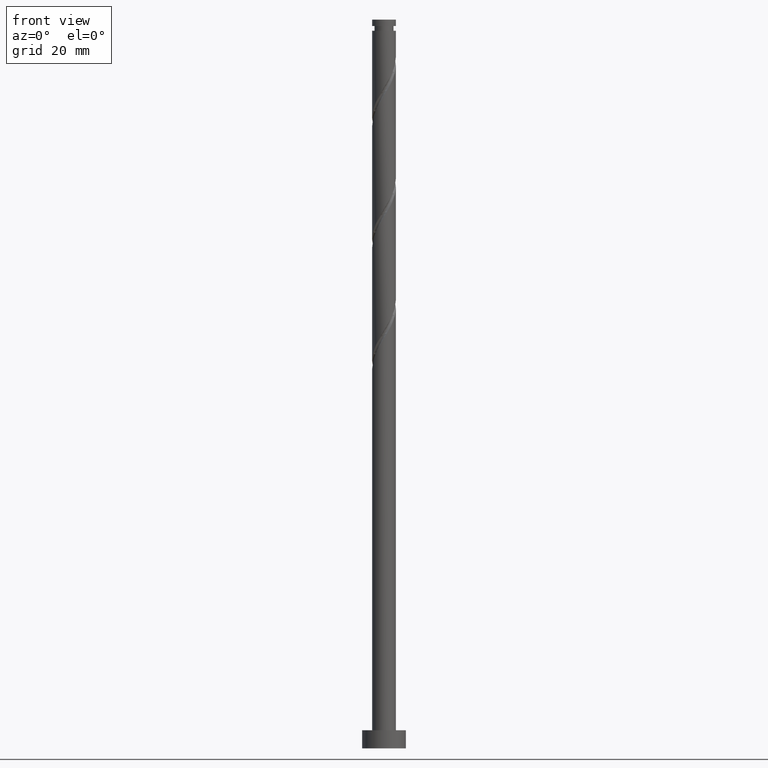
[diagram: clean part render]
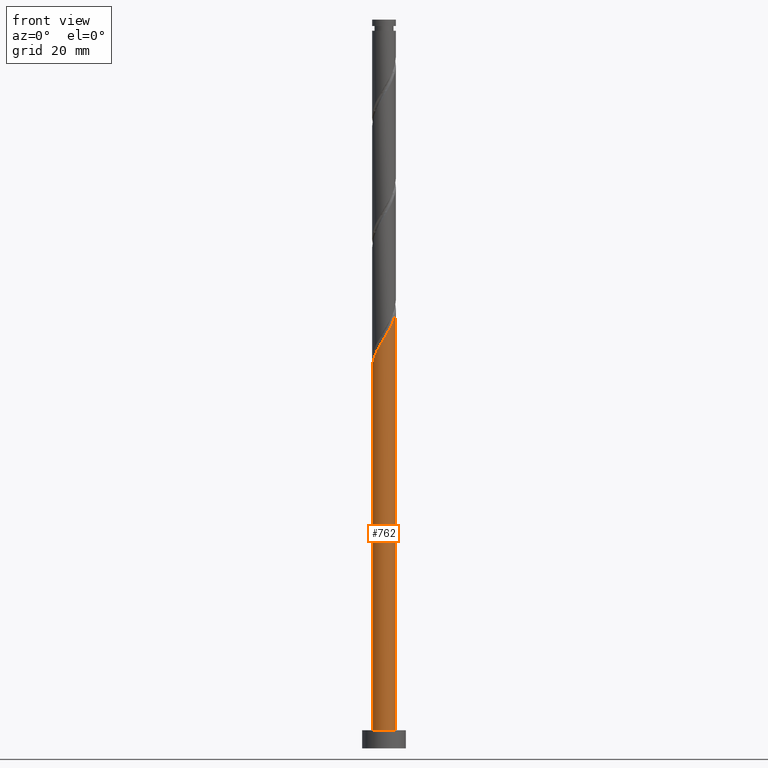
[diagram: same view with one face highlighted and labeled with its STEP entity id]
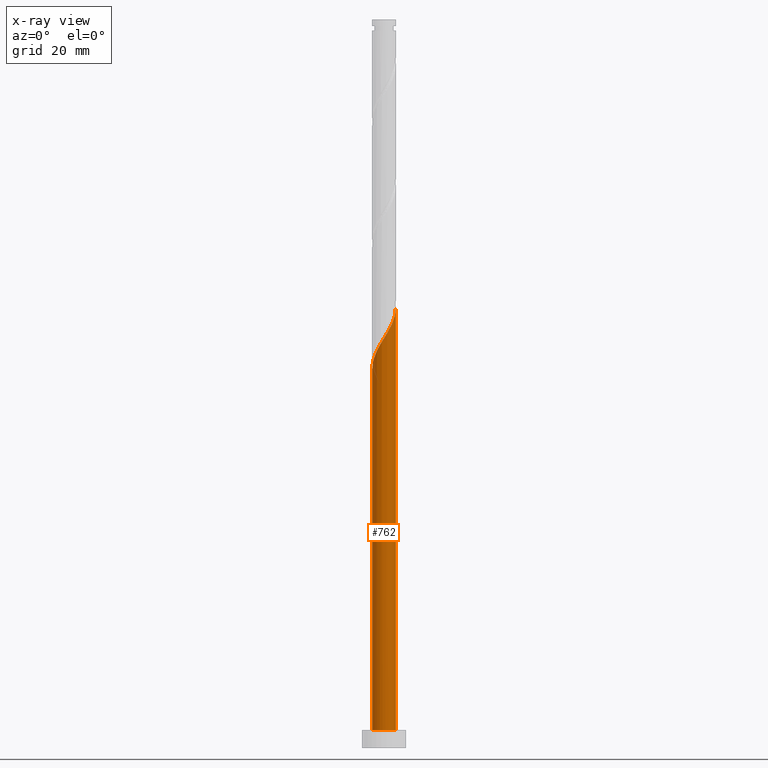
[diagram: x-ray of the same camera — body ghosted, the highlighted face saturated]
A machine part, front view. The second image highlights one B-rep face of the part: STEP entity #762.
The next image is the same camera in x-ray: the body ghosted, the highlighted face saturated — about 0% of this face is hidden behind the body in this view.
In plain terms, the highlighted cylindrical surface (edge-blend (fillet) strip) has radius 3.25 mm, axis along (-0, -0, -1).
Its self-contained STEP definition (entity closure, byte-faithful):
#37 = CARTESIAN_POINT ( 'NONE',  ( 3.243862860665297276, -0.1996340181341360320, 120.5436769742773748 ) ) ;
#109 = CARTESIAN_POINT ( 'NONE',  ( -1.794819561496372229, -2.709450634661942026, 109.4325658631662748 ) ) ;
#118 = CARTESIAN_POINT ( 'NONE',  ( -3.250000000000004885, -0.3266372899592457357, 104.7357589104788076 ) ) ;
#126 = CARTESIAN_POINT ( 'NONE',  ( -3.099854822243945929, -1.066055038935160182, 105.9603436409440747 ) ) ;
#133 = EDGE_CURVE ( 'NONE', #983, #710, #1152, .T. ) ;
#135 = CARTESIAN_POINT ( 'NONE',  ( 0.000000000000000000, 0.000000000000000000, 5.000000000000000000 ) ) ;
#136 = EDGE_LOOP ( 'NONE', ( #1225, #1531, #1137, #1374 ) ) ;
#174 = CARTESIAN_POINT ( 'NONE',  ( 3.081661828113092305, -1.032405141962544626, 119.1547880853885033 ) ) ;
#177 = VERTEX_POINT ( 'NONE', #368 ) ;
#193 = AXIS2_PLACEMENT_3D ( 'NONE', #1527, #1639, #1113 ) ;
#247 = DIRECTION ( 'NONE',  ( -0.000000000000000000, -0.000000000000000000, -1.000000000000000000 ) ) ;
#294 = CARTESIAN_POINT ( 'NONE',  ( 3.250000000000004441, -4.486135333085995847E-17, 120.8689992079562217 ) ) ;
#297 = VERTEX_POINT ( 'NONE', #1082 ) ;
#305 = DIRECTION ( 'NONE',  ( -0.000000000000000000, -0.000000000000000000, -1.000000000000000000 ) ) ;
#368 = CARTESIAN_POINT ( 'NONE',  ( -3.250000000000000444, 0.000000000000000000, 5.000000000000000000 ) ) ;
#376 = CARTESIAN_POINT ( 'NONE',  ( -3.185000000000004494, -0.6467418341193040821, 105.2658991964996176 ) ) ;
#433 = CARTESIAN_POINT ( 'NONE',  ( 2.709450634661941137, -1.794819561496373117, 117.7658991964996318 ) ) ;
#538 = DIRECTION ( 'NONE',  ( 1.000000000000000000, 0.000000000000000000, 0.000000000000000000 ) ) ;
#561 = CARTESIAN_POINT ( 'NONE',  ( 1.832031559402690801, -2.718314483348208022, 115.6825658631662748 ) ) ;
#563 = CYLINDRICAL_SURFACE ( 'NONE', #193, 3.250000000000000444 ) ;
#643 = CARTESIAN_POINT ( 'NONE',  ( -0.1996340181341343112, -3.243862860665297276, 112.2103436409440604 ) ) ;
#649 = EDGE_CURVE ( 'NONE', #177, #710, #800, .T. ) ;
#660 = CARTESIAN_POINT ( 'NONE',  ( -2.151525504639372866, -2.473158156672230046, 108.7381214187218603 ) ) ;
#663 = DIRECTION ( 'NONE',  ( 0.000000000000000000, 0.000000000000000000, 1.000000000000000000 ) ) ;
#705 = CARTESIAN_POINT ( 'NONE',  ( 3.217580543574532381, -0.6266966655717167711, 119.8492325298329888 ) ) ;
#710 = VERTEX_POINT ( 'NONE', #1121 ) ;
#762 = ADVANCED_FACE ( 'NONE', ( #823 ), #563, .T. ) ;
#776 = VECTOR ( 'NONE', #305, 1000.000000000000000 ) ;
#780 = CARTESIAN_POINT ( 'NONE',  ( -2.909084652796075865, -1.449043299168925714, 106.6547880853885033 ) ) ;
#800 = CIRCLE ( 'NONE', #1200, 3.250000000000000444 ) ;
#823 = FACE_OUTER_BOUND ( 'NONE', #136, .T. ) ;
#834 = CARTESIAN_POINT ( 'NONE',  ( 0.6467418341193037490, -3.185000000000004494, 113.5992325298329035 ) ) ;
#846 = CARTESIAN_POINT ( 'NONE',  ( 2.473158156672230046, -2.151525504639372866, 117.0714547520551747 ) ) ;
#931 = CARTESIAN_POINT ( 'NONE',  ( -1.032405141962544182, -3.081661828113091861, 110.8214547520551747 ) ) ;
#939 = EDGE_CURVE ( 'NONE', #297, #983, #1559, .T. ) ;
#951 = CARTESIAN_POINT ( 'NONE',  ( 1.449043299168925047, -2.909084652796076309, 114.9881214187218319 ) ) ;
#965 = LINE ( 'NONE', #1503, #776 ) ;
#979 = CARTESIAN_POINT ( 'NONE',  ( 2.945743112651654005, -1.438113618353373369, 118.4603436409440889 ) ) ;
#983 = VERTEX_POINT ( 'NONE', #1130 ) ;
#1021 = EDGE_CURVE ( 'NONE', #297, #177, #965, .T. ) ;
#1036 = CARTESIAN_POINT ( 'NONE',  ( 3.250000000000000444, 3.980102097228898231E-16, 200.0000000000000000 ) ) ;
#1082 = CARTESIAN_POINT ( 'NONE',  ( -3.250000000000004441, -2.048668468775938040E-15, 104.2023325412895502 ) ) ;
#1111 = CARTESIAN_POINT ( 'NONE',  ( 2.152594858037460313, -2.434919993993788889, 116.3770103076107034 ) ) ;
#1113 = DIRECTION ( 'NONE',  ( -1.000000000000000000, 0.000000000000000000, 0.000000000000000000 ) ) ;
#1121 = CARTESIAN_POINT ( 'NONE',  ( 3.250000000000000444, 3.980102097228898231E-16, 5.000000000000000000 ) ) ;
#1130 = CARTESIAN_POINT ( 'NONE',  ( 3.250000000000004441, -4.486135333085995230E-17, 120.8689992079562217 ) ) ;
#1137 = ORIENTED_EDGE ( 'NONE', *, *, #1021, .T. ) ;
#1152 = LINE ( 'NONE', #1036, #1169 ) ;
#1169 = VECTOR ( 'NONE', #247, 1000.000000000000000 ) ;
#1182 = CARTESIAN_POINT ( 'NONE',  ( 0.2274286293034465667, -3.270145177756065280, 112.9047880853885175 ) ) ;
#1190 = CARTESIAN_POINT ( 'NONE',  ( -2.718314483348208022, -1.832031559402691467, 107.3492325298329888 ) ) ;
#1200 = AXIS2_PLACEMENT_3D ( 'NONE', #135, #663, #538 ) ;
#1212 = CARTESIAN_POINT ( 'NONE',  ( -0.6266966655717152168, -3.217580543574532381, 111.5158991964996460 ) ) ;
#1219 = CARTESIAN_POINT ( 'NONE',  ( -3.250000000000004441, -2.048668468775938040E-15, 104.2023325412895502 ) ) ;
#1225 = ORIENTED_EDGE ( 'NONE', *, *, #133, .F. ) ;
#1318 = CARTESIAN_POINT ( 'NONE',  ( -2.434919993993788889, -2.152594858037460313, 108.0436769742773748 ) ) ;
#1374 = ORIENTED_EDGE ( 'NONE', *, *, #649, .T. ) ;
#1493 = CARTESIAN_POINT ( 'NONE',  ( 3.250000000000004441, -0.09991134288744125957, 120.7058355199280726 ) ) ;
#1494 = CARTESIAN_POINT ( 'NONE',  ( 1.066055038935160182, -3.099854822243945929, 114.2936769742774175 ) ) ;
#1503 = CARTESIAN_POINT ( 'NONE',  ( -3.250000000000000444, 0.000000000000000000, 200.0000000000000000 ) ) ;
#1527 = CARTESIAN_POINT ( 'NONE',  ( 0.000000000000000000, 0.000000000000000000, 200.0000000000000000 ) ) ;
#1531 = ORIENTED_EDGE ( 'NONE', *, *, #939, .F. ) ;
#1559 =( BOUNDED_CURVE ( )  B_SPLINE_CURVE ( 2, ( #1219, #118, #376, #126, #780, #1190, #1318, #660, #109, #1735, #931, #1212, #643, #1182, #834, #1494, #951, #561, #1111, #846, #433, #979, #174, #705, #37, #1493, #294 ),
 .UNSPECIFIED., .F., .T. ) 
 B_SPLINE_CURVE_WITH_KNOTS ( ( 3, 2, 2, 2, 2, 2, 2, 2, 2, 2, 2, 2, 2, 3 ),
 ( 0.05453176698144635709, 0.06250000000000000000, 0.07291666666666662966, 0.08333333333333337034, 0.09375000000000000000, 0.1041666666666666297, 0.1145833333333333703, 0.1250000000000000000, 0.1354166666666666297, 0.1458333333333333703, 0.1562500000000000000, 0.1666666666666666297, 0.1770833333333333703, 0.1795317669814463224 ),
 .UNSPECIFIED. ) 
 CURVE ( )  GEOMETRIC_REPRESENTATION_ITEM ( )  RATIONAL_B_SPLINE_CURVE ( ( 0.9062941362546506063, 0.9031415850403549106, 0.9090909090909304879, 0.9013135103398486336, 0.9090909090909304879, 0.9013135103398486336, 0.9090909090909304879, 0.9013135103398486336, 0.9090909090909304879, 0.9013135103398486336, 0.9090909090909304879, 0.9013135103398486336, 0.9090909090909304879, 0.9013135103398486336, 0.9090909090909304879, 0.9013135103398486336, 0.9090909090909304879, 0.9013135103398486336, 0.9090909090909304879, 0.9013135103398486336, 0.9090909090909304879, 0.9013135103398486336, 0.9090909090909304879, 0.9013135103398486336, 0.9090909090909304879, 0.9072628343904241000, 0.9062941362546506063 ) ) 
 REPRESENTATION_ITEM ( '' )  );
#1639 = DIRECTION ( 'NONE',  ( -0.000000000000000000, -0.000000000000000000, -1.000000000000000000 ) ) ;
#1735 = CARTESIAN_POINT ( 'NONE',  ( -1.438113618353373369, -2.945743112651654894, 110.1270103076107603 ) ) ;